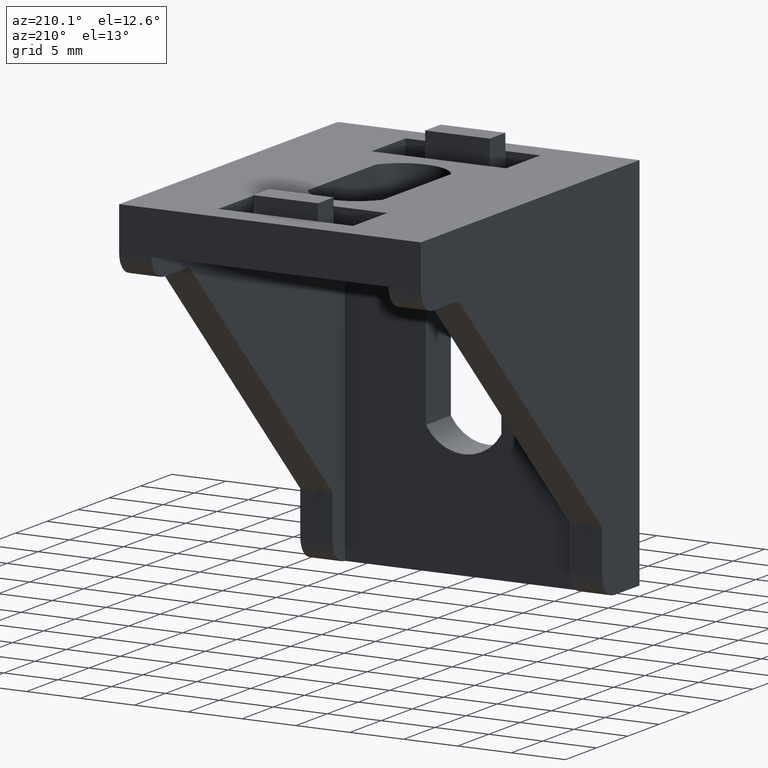
[diagram: clean part render]
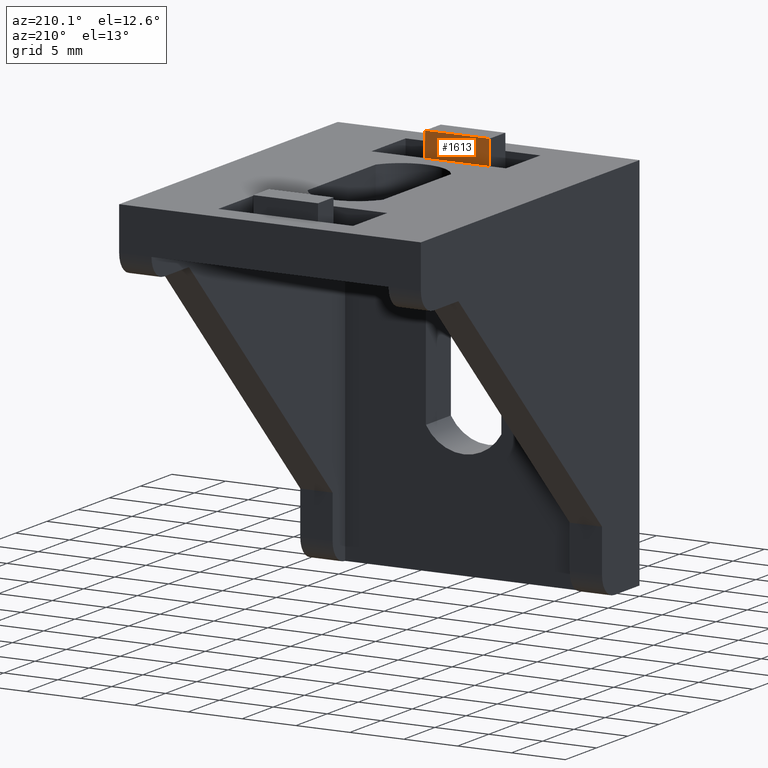
[diagram: same view with one face highlighted and labeled with its STEP entity id]
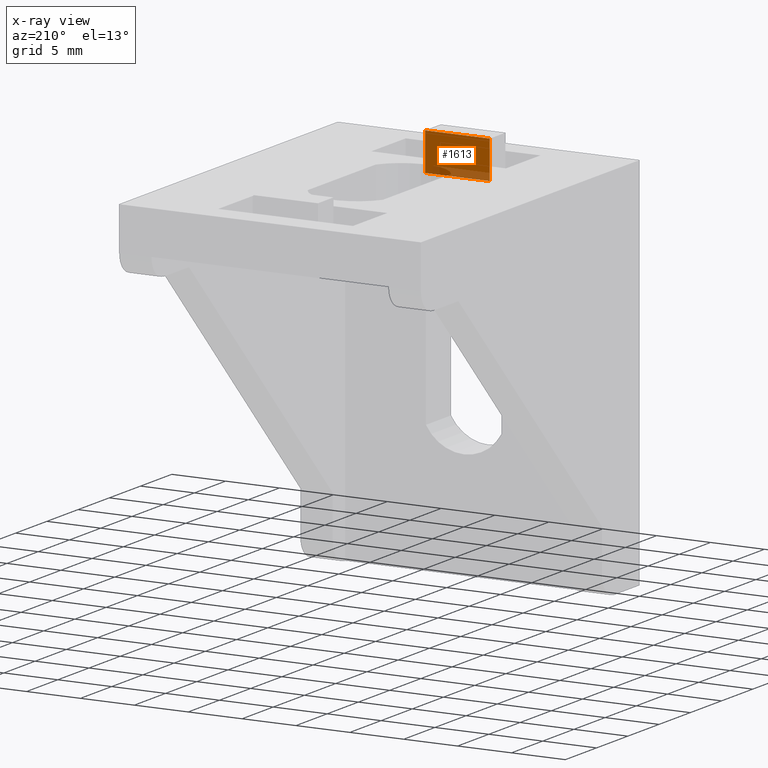
[diagram: x-ray of the same camera — body ghosted, the highlighted face saturated]
A machine part, auxiliary view. The second image highlights one B-rep face of the part: STEP entity #1613.
The next image is the same camera in x-ray: the body ghosted, the highlighted face saturated — about 17% of this face is hidden behind the body in this view.
In plain terms, the highlighted planar face has unit normal (0, -1, 0).
Its self-contained STEP definition (entity closure, byte-faithful):
#92 = VERTEX_POINT ( 'NONE', #1980 ) ;
#198 = PLANE ( 'NONE',  #2180 ) ;
#199 = CARTESIAN_POINT ( 'NONE',  ( 11.00000000000000000, 5.000000000000000000, -2.000000000000000000 ) ) ;
#200 = DIRECTION ( 'NONE',  ( 0.0000000000000000000, -1.000000000000000000, 0.0000000000000000000 ) ) ;
#201 = DIRECTION ( 'NONE',  ( 1.000000000000000000, 0.0000000000000000000, 0.0000000000000000000 ) ) ;
#258 = CARTESIAN_POINT ( 'NONE',  ( 11.00000000000000000, 5.000000000625000500, -2.000000000000000000 ) ) ;
#265 = CARTESIAN_POINT ( 'NONE',  ( 11.00000000000000000, 5.000000000000000000, 1.500000000000000000 ) ) ;
#270 = CARTESIAN_POINT ( 'NONE',  ( 17.00000000000000000, 5.000000000625000500, -2.000000000000000000 ) ) ;
#618 = ORIENTED_EDGE ( 'NONE', *, *, #1294, .T. ) ;
#619 = ORIENTED_EDGE ( 'NONE', *, *, #1290, .F. ) ;
#620 = ORIENTED_EDGE ( 'NONE', *, *, #1276, .T. ) ;
#621 = ORIENTED_EDGE ( 'NONE', *, *, #1284, .F. ) ;
#947 = CARTESIAN_POINT ( 'NONE',  ( 17.00000000000000000, 5.000000000000000000, -0.2500000000000000000 ) ) ;
#948 = DIRECTION ( 'NONE',  ( -0.0000000000000000000, -0.0000000000000000000, -1.000000000000000000 ) ) ;
#964 = CARTESIAN_POINT ( 'NONE',  ( 14.00000000000000000, 5.000000002500000200, -2.000000000000000000 ) ) ;
#965 = DIRECTION ( 'NONE',  ( 1.000000000000000000, 0.0000000000000000000, 0.0000000000000000000 ) ) ;
#977 = CARTESIAN_POINT ( 'NONE',  ( 14.00000000000000000, 5.000000000000000000, 1.500000000000000000 ) ) ;
#978 = DIRECTION ( 'NONE',  ( -1.000000000000000000, -0.0000000000000000000, -0.0000000000000000000 ) ) ;
#985 = CARTESIAN_POINT ( 'NONE',  ( 11.00000000000000000, 5.000000000000000000, -0.2500000000000000000 ) ) ;
#986 = DIRECTION ( 'NONE',  ( -0.0000000000000000000, -0.0000000000000000000, 1.000000000000000000 ) ) ;
#1058 = EDGE_LOOP ( 'NONE', ( #618, #619, #620, #621 ) ) ;
#1276 = EDGE_CURVE ( 'NONE', #92, #2046, #1821, .T. ) ;
#1284 = EDGE_CURVE ( 'NONE', #2034, #2046, #1837, .T. ) ;
#1290 = EDGE_CURVE ( 'NONE', #92, #2041, #1849, .T. ) ;
#1294 = EDGE_CURVE ( 'NONE', #2034, #2041, #1857, .T. ) ;
#1405 = FACE_OUTER_BOUND ( 'NONE', #1058, .T. ) ;
#1613 = ADVANCED_FACE ( 'NONE', ( #1405 ), #198, .F. ) ;
#1821 = LINE ( 'NONE', #947, #1822 ) ;
#1822 = VECTOR ( 'NONE', #948, 1000.000000000000000 ) ;
#1837 = LINE ( 'NONE', #964, #1838 ) ;
#1838 = VECTOR ( 'NONE', #965, 1000.000000000000000 ) ;
#1849 = LINE ( 'NONE', #977, #1850 ) ;
#1850 = VECTOR ( 'NONE', #978, 1000.000000000000000 ) ;
#1857 = LINE ( 'NONE', #985, #1858 ) ;
#1858 = VECTOR ( 'NONE', #986, 1000.000000000000000 ) ;
#1980 = CARTESIAN_POINT ( 'NONE',  ( 17.00000000000000000, 5.000000000000000000, 1.500000000000000000 ) ) ;
#2034 = VERTEX_POINT ( 'NONE', #258 ) ;
#2041 = VERTEX_POINT ( 'NONE', #265 ) ;
#2046 = VERTEX_POINT ( 'NONE', #270 ) ;
#2180 = AXIS2_PLACEMENT_3D ( 'NONE', #199, #200, #201 ) ;